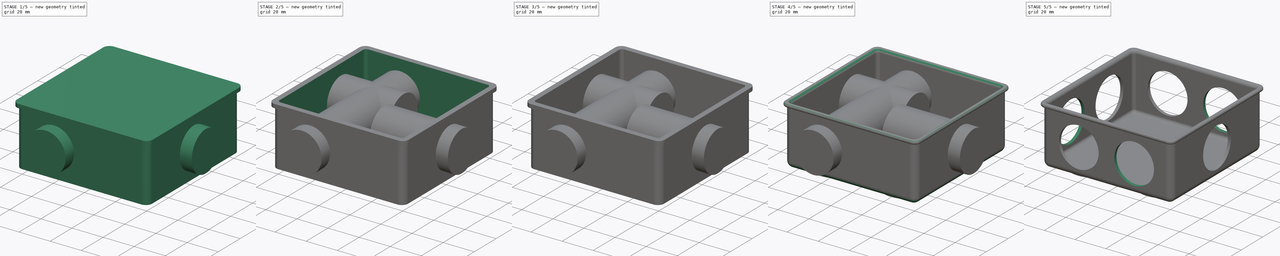
[diagram: build sequence overview — one tinted view per stage of 5, left to right]
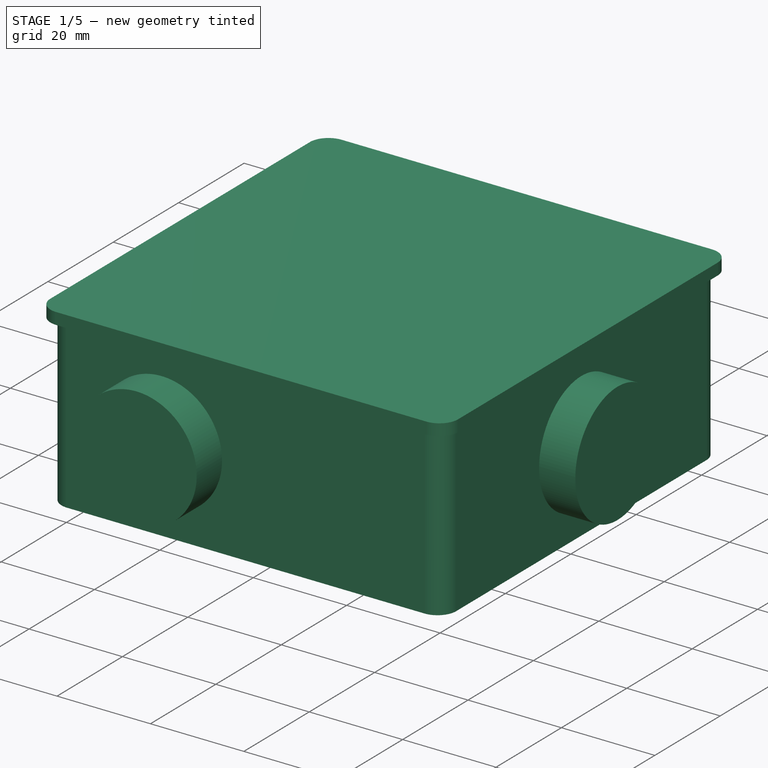
[diagram: stage 1 of 5 — iso view after this stage's code; geometry added in this stage tinted green]
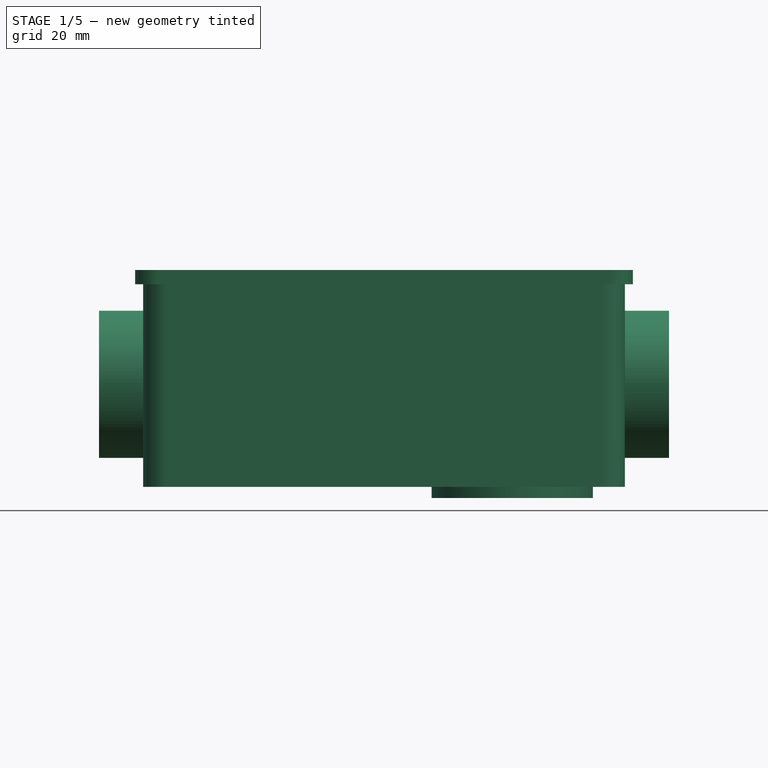
[diagram: stage 1 of 5 — front view after this stage's code; geometry added in this stage tinted green]
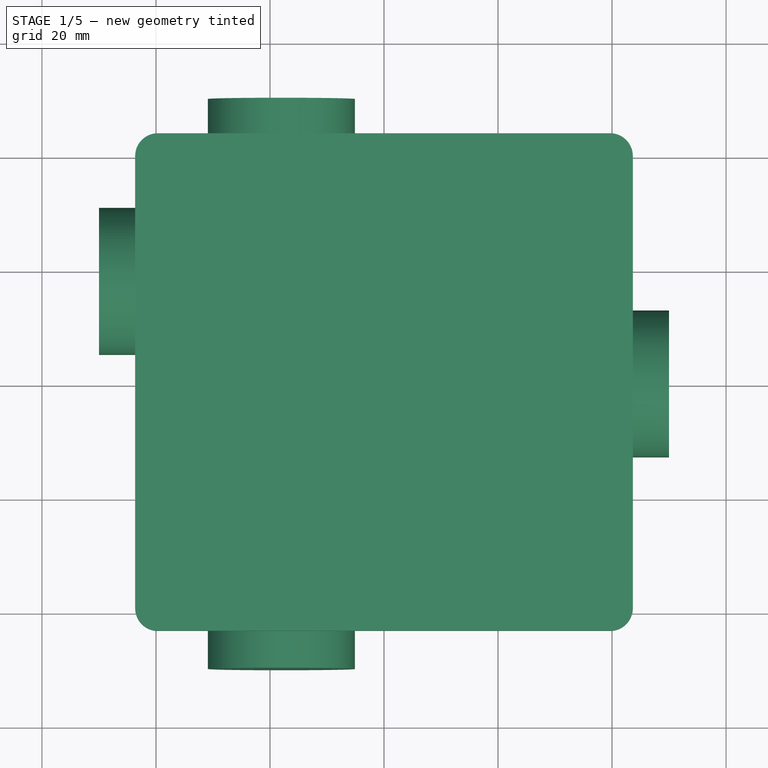
[diagram: stage 1 of 5 — top view after this stage's code; geometry added in this stage tinted green]
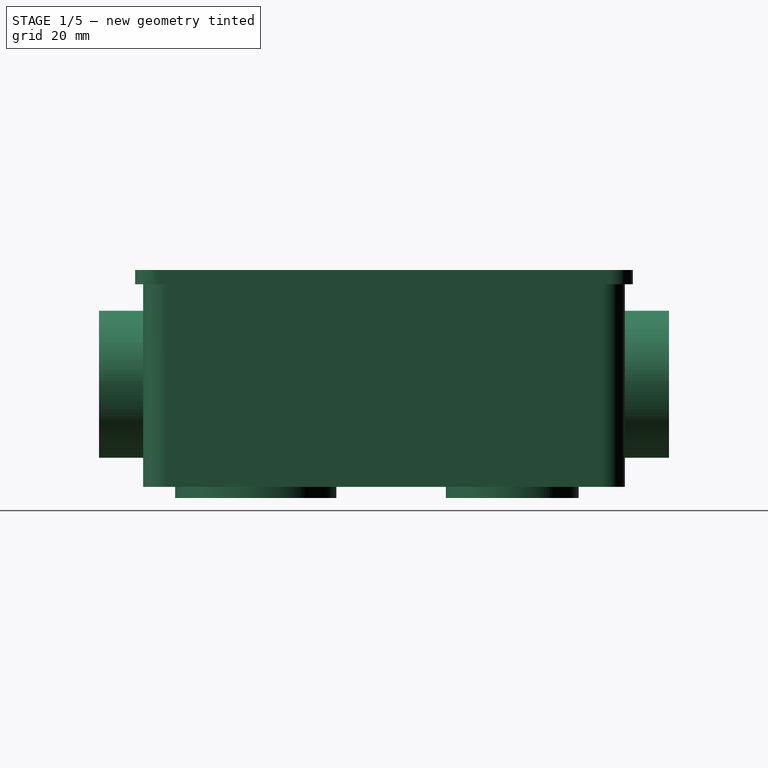
[diagram: stage 1 of 5 — right view after this stage's code; geometry added in this stage tinted green]
FCSTD DOCUMENT  (FreeCAD 0.15R4671 (Git))
Label: Cuerpo
License: All rights reserved
LicenseURL: http://en.wikipedia.org/wiki/All_rights_reserved
objects: Part::Cylinder×13, Part::Cut×9, Part::MultiFuse×5, Part::Fillet×4, Sketcher::SketchObject×3, PartDesign::Pad×2, PartDesign::Pocket×1, Part::MultiCommon×1
note: 41 computed .brp shape members not serialized (recipe doc carries the construction recipe); baked Part::Feature solids carry a one-line shape summary decoded from their .brp

FEATURE [Sketcher::SketchObject] Sketch
  sketch-geometry (8):
    g0: LineSegment StartX=-38.25 StartY=42.25 StartZ=0 EndX=38.25 EndY=42.25 EndZ=0
    g1: LineSegment StartX=42.25 StartY=38.25 StartZ=0 EndX=42.25 EndY=-38.25 EndZ=0
    g2: LineSegment StartX=38.25 StartY=-42.25 StartZ=0 EndX=-38.25 EndY=-42.25 EndZ=0
    g3: LineSegment StartX=-42.25 StartY=-38.25 StartZ=0 EndX=-42.25 EndY=38.25 EndZ=0
    g4: ArcOfCircle CenterX=38.25 CenterY=38.25 CenterZ=0 NormalX=0 NormalY=0 NormalZ=1 Radius=4 StartAngle=0 EndAngle=1.5708
    g5: ArcOfCircle CenterX=-38.25 CenterY=38.25 CenterZ=0 NormalX=0 NormalY=0 NormalZ=1 Radius=4 StartAngle=1.5708 EndAngle=3.14159
    g6: ArcOfCircle CenterX=-38.25 CenterY=-38.25 CenterZ=0 NormalX=0 NormalY=0 NormalZ=1 Radius=4 StartAngle=3.14159 EndAngle=4.71239
    g7: ArcOfCircle CenterX=38.25 CenterY=-38.25 CenterZ=0 NormalX=0 NormalY=0 NormalZ=1 Radius=4 StartAngle=4.71239 EndAngle=6.28319
  constraints (19):
    c: Horizontal(g0)
    c: Horizontal(g2)
    c: Vertical(g1)
    c: Vertical(g3)
    c: Tangent(g0,g4) = 1.5708
    c: Tangent(g1,g4) = 1.5708
    c: Tangent(g0,g5) = 1.5708
    c: Tangent(g3,g5) = 1.5708
    c: Tangent(g3,g6) = 1.5708
    c: Tangent(g2,g6) = 1.5708
    c: Tangent(g2,g7) = 1.5708
    c: Tangent(g1,g7) = 1.5708
    c: Equal(g5,g4)
    c: Equal(g4,g7)
    c: Equal(g7,g6)
    c: Radius(g5) = 4
    c: Equal(g0,g1)
    c: Symmetric(g5,g7,g-1)
    c: DistanceY(g0,g2) = -84.5
FEATURE [PartDesign::Pad] Pad
  Length = 35.55
  Length2 = 100
  Sketch = -> Sketch
  Type = 0
FEATURE [Sketcher::SketchObject] Sketch001
  Placement = pos=(0,0,35.55) rot=(0,0,1;0rad)
  Support = -> Pad [Face10]
  sketch-geometry (8):
    g0: LineSegment StartX=-39.65 StartY=43.65 StartZ=0 EndX=39.65 EndY=43.65 EndZ=0
    g1: LineSegment StartX=43.65 StartY=39.65 StartZ=0 EndX=43.65 EndY=-39.65 EndZ=0
    g2: LineSegment StartX=39.65 StartY=-43.65 StartZ=0 EndX=-39.65 EndY=-43.65 EndZ=0
    g3: LineSegment StartX=-43.65 StartY=-39.65 StartZ=0 EndX=-43.65 EndY=39.65 EndZ=0
    g4: ArcOfCircle CenterX=39.65 CenterY=39.65 CenterZ=0 NormalX=0 NormalY=0 NormalZ=1 Radius=4 StartAngle=0 EndAngle=1.5708
    g5: ArcOfCircle CenterX=39.65 CenterY=-39.65 CenterZ=0 NormalX=0 NormalY=0 NormalZ=1 Radius=4 StartAngle=4.71239 EndAngle=6.28319
    g6: ArcOfCircle CenterX=-39.65 CenterY=-39.65 CenterZ=0 NormalX=0 NormalY=0 NormalZ=1 Radius=4 StartAngle=3.14159 EndAngle=4.71239
    g7: ArcOfCircle CenterX=-39.65 CenterY=39.65 CenterZ=0 NormalX=0 NormalY=0 NormalZ=1 Radius=4 StartAngle=1.5708 EndAngle=3.14159
  constraints (19):
    c: Horizontal(g0)
    c: Horizontal(g2)
    c: Vertical(g1)
    c: Vertical(g3)
    c: Tangent(g0,g4) = 1.5708
    c: Tangent(g1,g4) = 1.5708
    c: Tangent(g1,g5) = 1.5708
    c: Tangent(g2,g5) = 1.5708
    c: Tangent(g2,g6) = 1.5708
    c: Tangent(g3,g6) = 1.5708
    c: Tangent(g3,g7) = 1.5708
    c: Tangent(g0,g7) = 1.5708
    c: Equal(g7,g4)
    c: Equal(g4,g5)
    c: Equal(g5,g6)
    c: Radius(g4) = 4
    c: Symmetric(g7,g5,g-1)
    c: Equal(g0,g1)
    c: DistanceY(g0,g2) = -87.3
FEATURE [PartDesign::Pad] Pad001
  Length = 2.5
  Length2 = 100
  Sketch = -> Sketch001
  Type = 0
FEATURE [Part::Cylinder] Cylinder001
  Angle = 360
  Height = 1.95
  Placement = pos=(22.5,-22.5,-1.95) rot=(0,0,1;0rad)
  Radius = 14.15
FEATURE [Part::Cylinder] Cylinder004
  Angle = 360
  Height = 1.95
  Placement = pos=(22.5,22.5,-1.95) rot=(0,0,1;0rad)
  Radius = 11.65
FEATURE [Part::Cylinder] Cylinder008
  Angle = 360
  Height = 100
  Placement = pos=(-18,50,18) rot=(1,0,0;1.5708rad)
  Radius = 12.9
FEATURE [Part::Cylinder] Cylinder010
  Angle = 360
  Height = 50
  Placement = pos=(-50,18,18) rot=(0,1,0;1.5708rad)
  Radius = 12.9
FEATURE [Part::Cylinder] Cylinder012
  Angle = 360
  Height = 50
  Placement = pos=(0,0,18) rot=(0,1,0;1.5708rad)
  Radius = 12.9
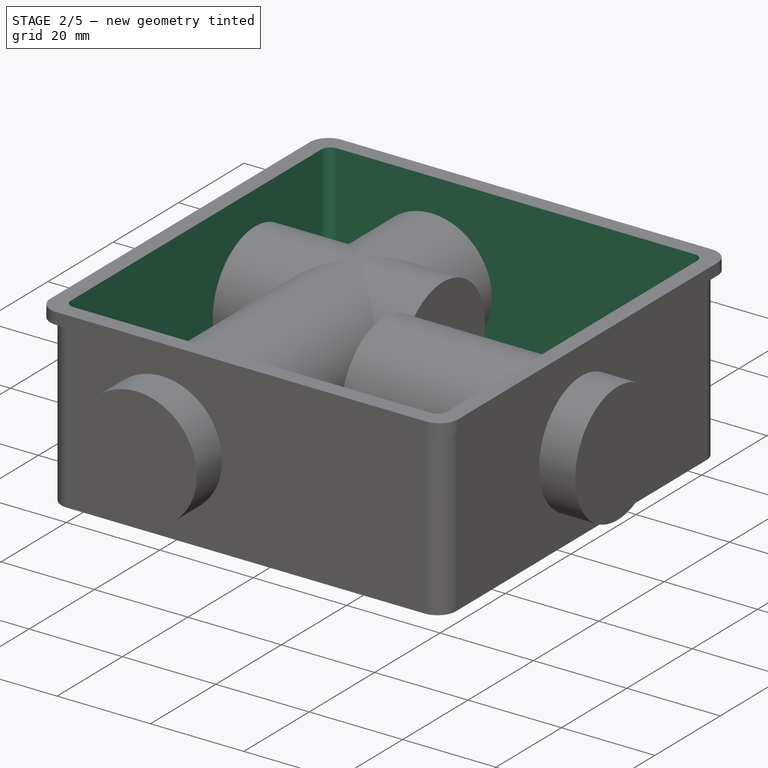
[diagram: stage 2 of 5 — iso view after this stage's code; geometry added in this stage tinted green]
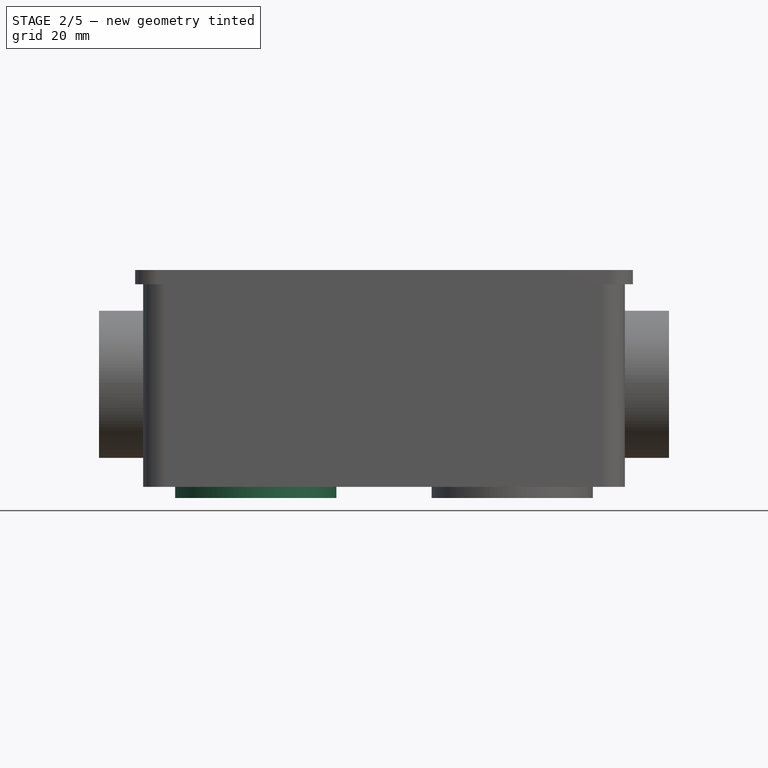
[diagram: stage 2 of 5 — front view after this stage's code; geometry added in this stage tinted green]
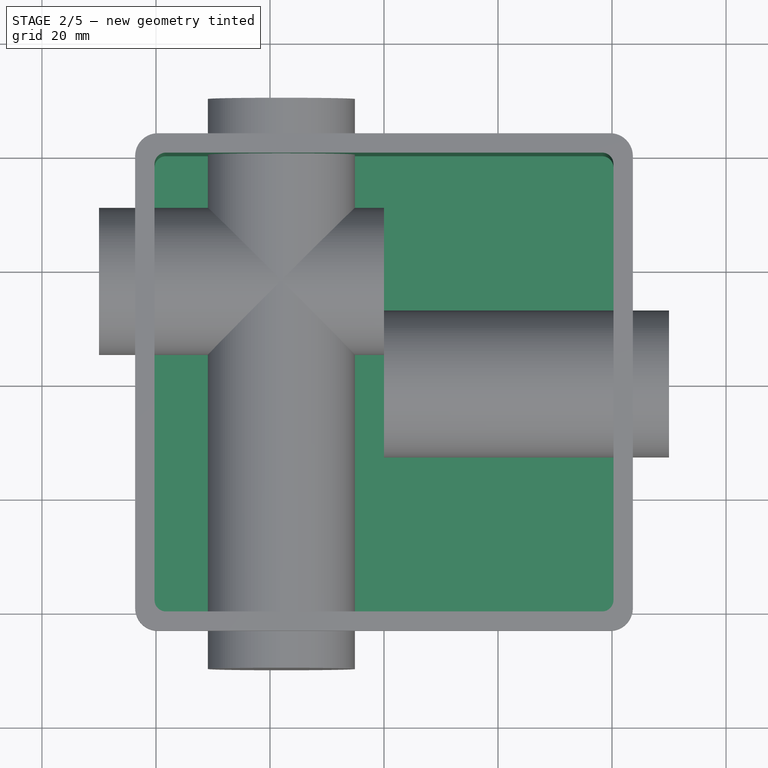
[diagram: stage 2 of 5 — top view after this stage's code; geometry added in this stage tinted green]
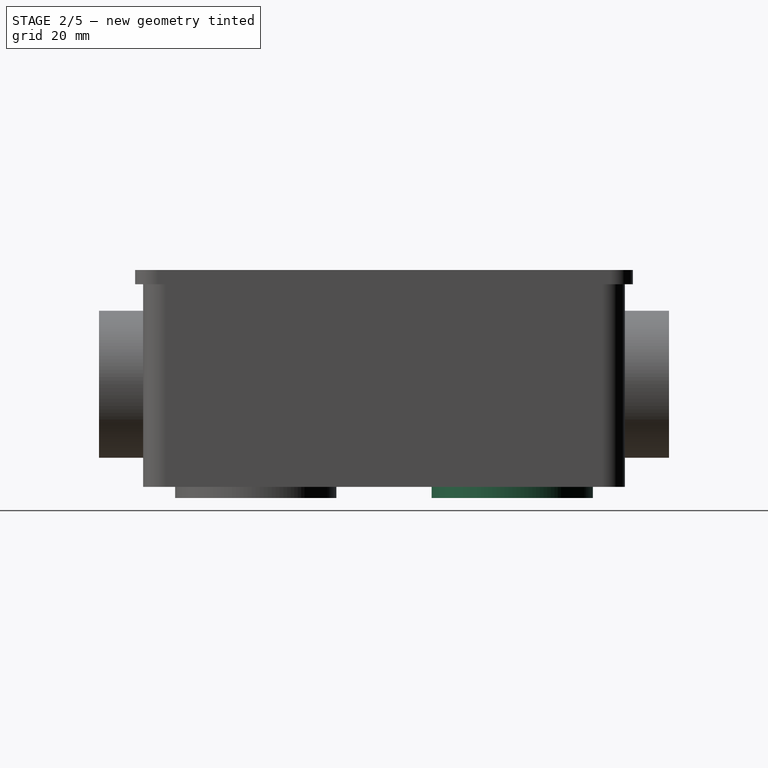
[diagram: stage 2 of 5 — right view after this stage's code; geometry added in this stage tinted green]
FEATURE [Part::Cylinder] Cylinder
  Angle = 360
  Height = 1.95
  Placement = pos=(22.5,22.5,-1.95) rot=(0,0,1;0rad)
  Radius = 14.15
FEATURE [Part::MultiFuse] Fusion
  Shapes = -> [Pad001,Pad]
FEATURE [Sketcher::SketchObject] Sketch002
  Placement = pos=(0,0,38.05) rot=(0,0,1;0rad)
  Support = -> Fusion [Face5]
  sketch-geometry (8):
    g0: LineSegment StartX=-38.25 StartY=40.25 StartZ=0 EndX=38.25 EndY=40.25 EndZ=0
    g1: LineSegment StartX=40.25 StartY=38.25 StartZ=0 EndX=40.25 EndY=-38.25 EndZ=0
    g2: LineSegment StartX=38.25 StartY=-40.25 StartZ=0 EndX=-38.25 EndY=-40.25 EndZ=0
    g3: LineSegment StartX=-40.25 StartY=-38.25 StartZ=0 EndX=-40.25 EndY=38.25 EndZ=0
    g4: ArcOfCircle CenterX=38.25 CenterY=38.25 CenterZ=0 NormalX=0 NormalY=0 NormalZ=1 Radius=2 StartAngle=0 EndAngle=1.5708
    g5: ArcOfCircle CenterX=38.25 CenterY=-38.25 CenterZ=0 NormalX=0 NormalY=0 NormalZ=1 Radius=2 StartAngle=4.71239 EndAngle=6.28319
    g6: ArcOfCircle CenterX=-38.25 CenterY=-38.25 CenterZ=0 NormalX=0 NormalY=0 NormalZ=1 Radius=2 StartAngle=3.14159 EndAngle=4.71239
    g7: ArcOfCircle CenterX=-38.25 CenterY=38.25 CenterZ=0 NormalX=0 NormalY=0 NormalZ=1 Radius=2 StartAngle=1.5708 EndAngle=3.14159
  constraints (19):
    c: Horizontal(g0)
    c: Horizontal(g2)
    c: Vertical(g1)
    c: Vertical(g3)
    c: Tangent(g0,g4) = 1.5708
    c: Tangent(g1,g4) = 1.5708
    c: Tangent(g1,g5) = 1.5708
    c: Tangent(g2,g5) = 1.5708
    c: Tangent(g2,g6) = 1.5708
    c: Tangent(g3,g6) = 1.5708
    c: Tangent(g3,g7) = 1.5708
    c: Tangent(g0,g7) = 1.5708
    c: Equal(g7,g4)
    c: Equal(g4,g5)
    c: Equal(g5,g6)
    c: Radius(g4) = 2
    c: Symmetric(g7,g5,g-1)
    c: Equal(g0,g1)
    c: DistanceY(g0,g2) = -80.5
FEATURE [PartDesign::Pocket] Pocket
  Length = 36.7
  Sketch = -> Sketch002
  Type = 0
FEATURE [Part::MultiCommon] Common
  Shapes = -> [Pocket,Fusion]
FEATURE [Part::MultiFuse] Fusion001
  Shapes = -> [Common,Cylinder]
FEATURE [Part::Cylinder] Cylinder002
  Angle = 360
  Height = 1.95
  Placement = pos=(-22.5,22.5,-1.95) rot=(0,0,1;0rad)
  Radius = 14.15
FEATURE [Part::MultiFuse] Fusion002
  Shapes = -> [Fusion001,Cylinder001]
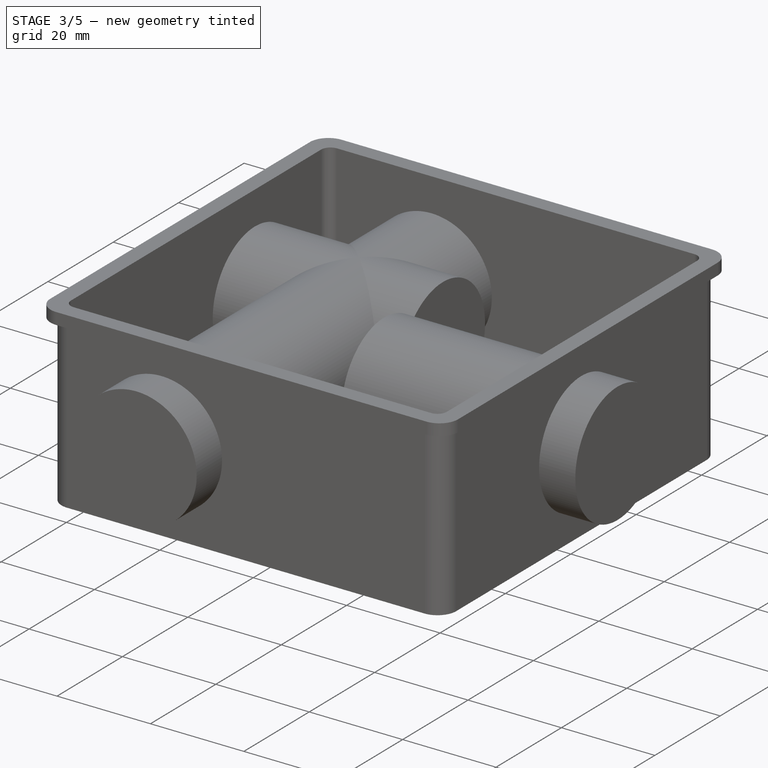
[diagram: stage 3 of 5 — iso view after this stage's code; geometry added in this stage tinted green]
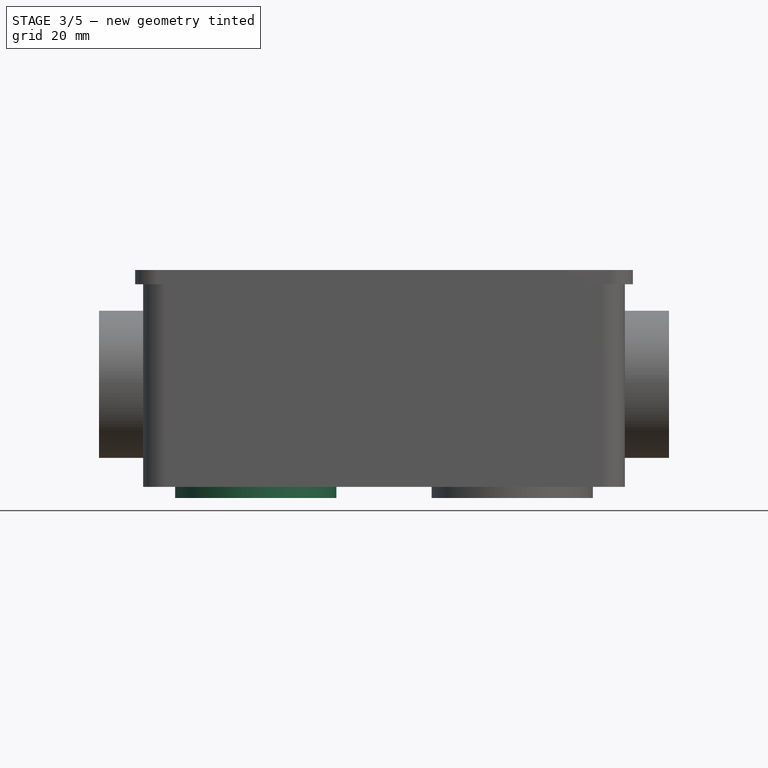
[diagram: stage 3 of 5 — front view after this stage's code; geometry added in this stage tinted green]
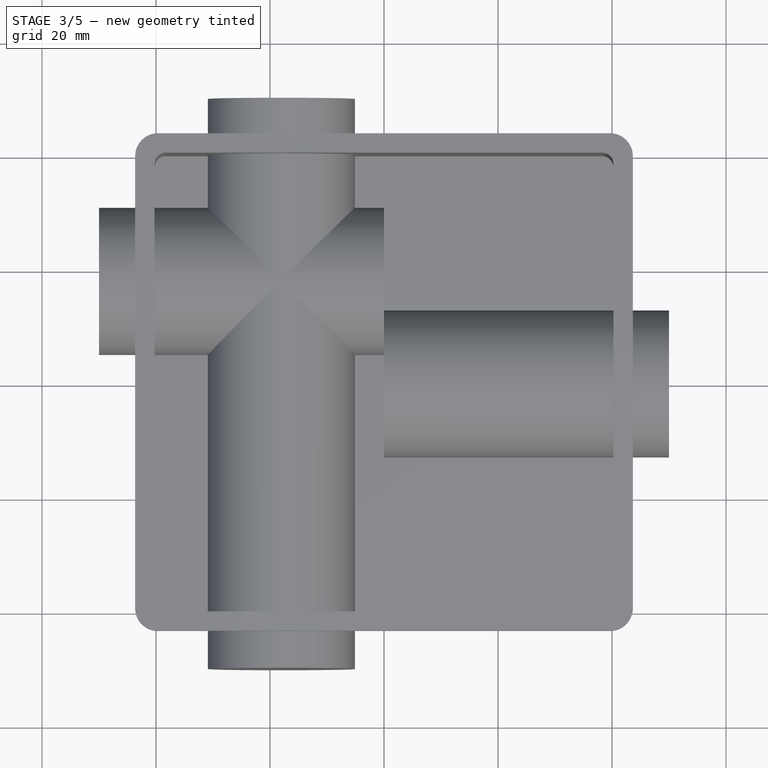
[diagram: stage 3 of 5 — top view after this stage's code; geometry added in this stage tinted green]
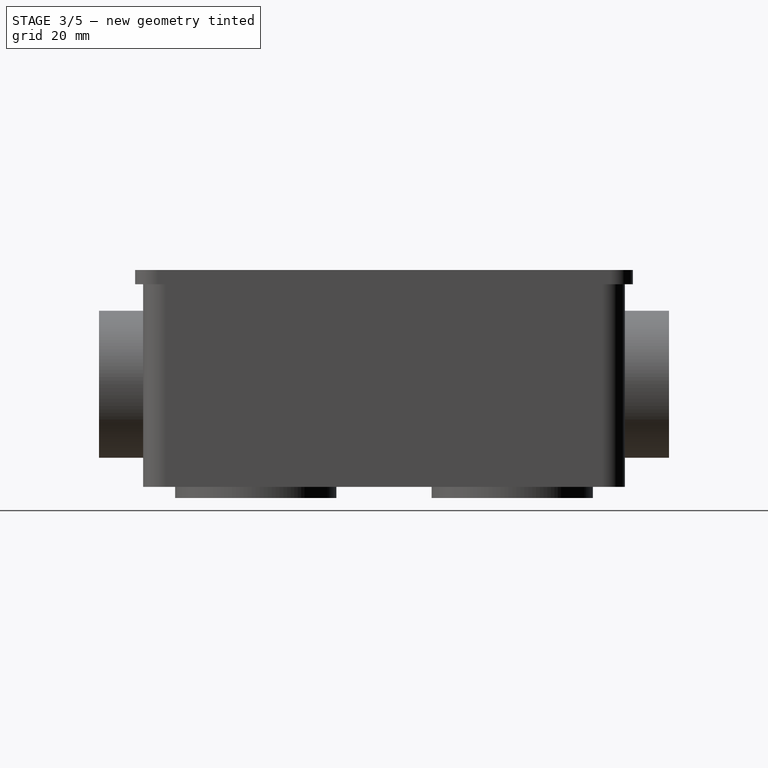
[diagram: stage 3 of 5 — right view after this stage's code; geometry added in this stage tinted green]
FEATURE [Part::Cylinder] Cylinder003
  Angle = 360
  Height = 1.95
  Placement = pos=(-22.5,-22.5,-1.95) rot=(0,0,1;0rad)
  Radius = 14.15
FEATURE [Part::MultiFuse] Fusion003
  Shapes = -> [Fusion002,Cylinder002]
FEATURE [Part::MultiFuse] Fusion004
  Shapes = -> [Fusion003,Cylinder003]
FEATURE [Part::Cylinder] Cylinder005
  Angle = 360
  Height = 1.95
  Placement = pos=(22.5,-22.5,-1.95) rot=(0,0,1;0rad)
  Radius = 11.65
FEATURE [Part::Cylinder] Cylinder006
  Angle = 360
  Height = 1.95
  Placement = pos=(-22.5,22.5,-1.95) rot=(0,0,1;0rad)
  Radius = 11.65
FEATURE [Part::Cut] Cut
  Base = -> Fusion004
  Tool = -> Cylinder004
FEATURE [Part::Cut] Cut001
  Base = -> Cut
  Tool = -> Cylinder005
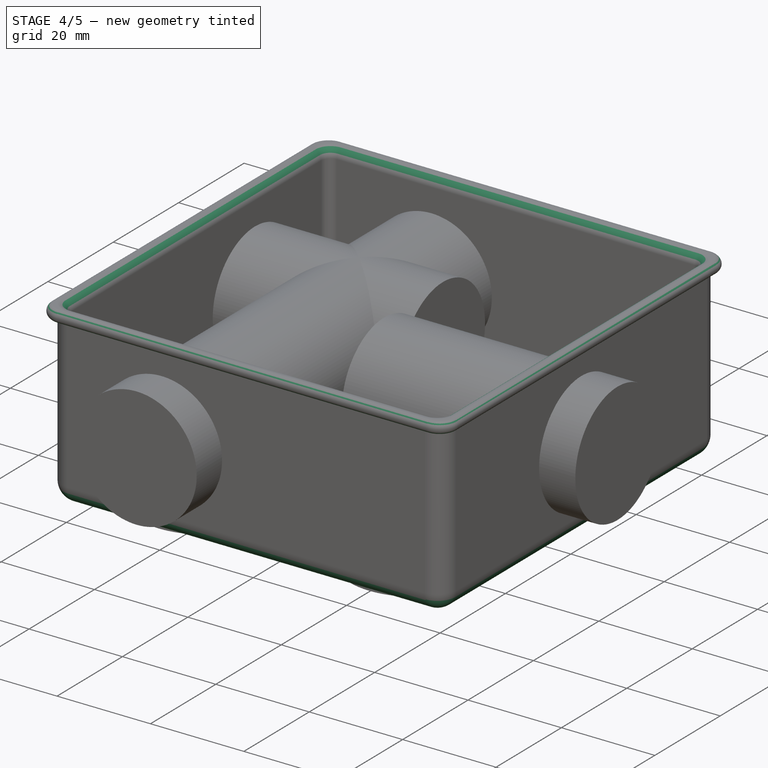
[diagram: stage 4 of 5 — iso view after this stage's code; geometry added in this stage tinted green]
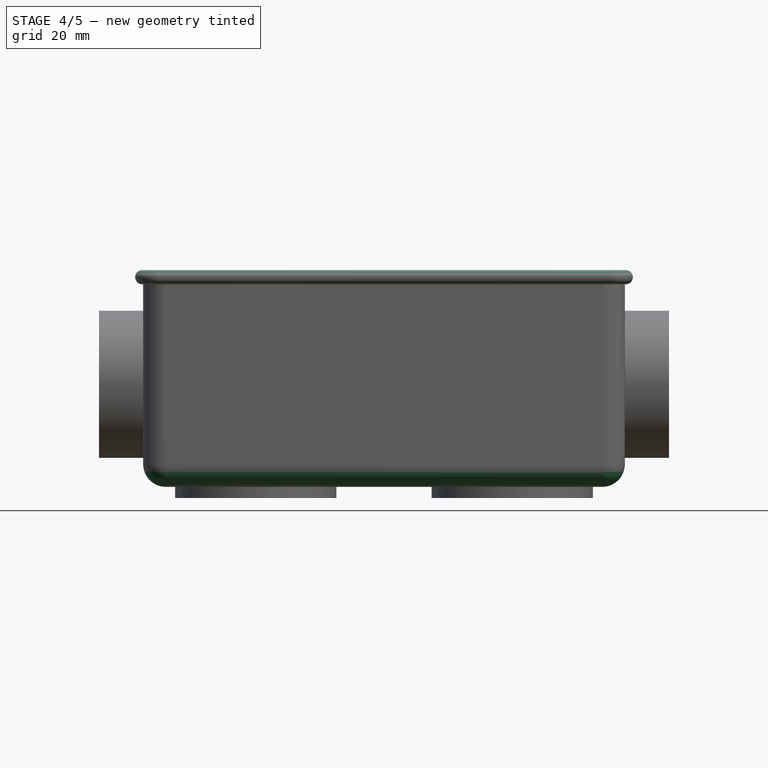
[diagram: stage 4 of 5 — front view after this stage's code; geometry added in this stage tinted green]
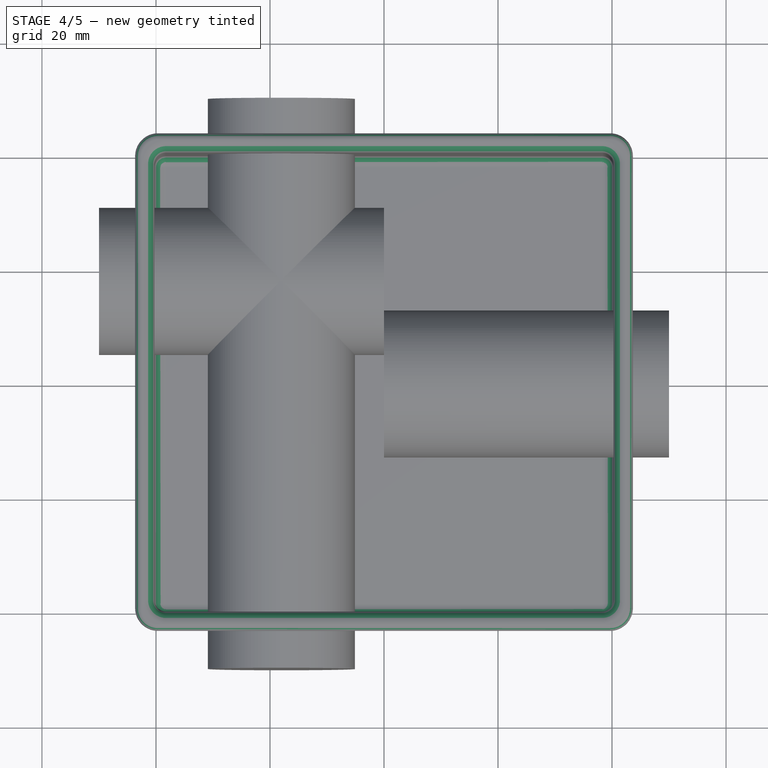
[diagram: stage 4 of 5 — top view after this stage's code; geometry added in this stage tinted green]
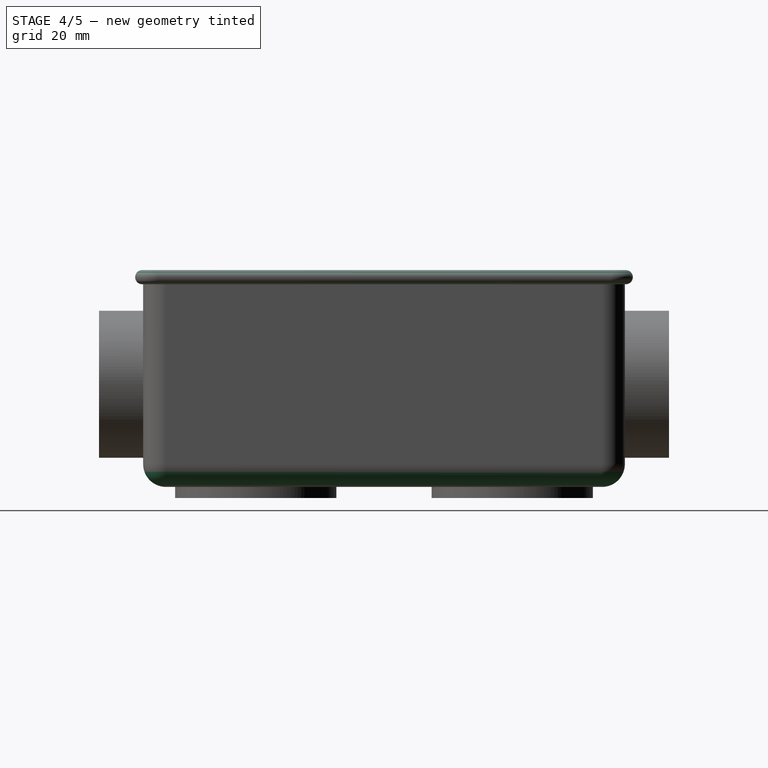
[diagram: stage 4 of 5 — right view after this stage's code; geometry added in this stage tinted green]
FEATURE [Part::Cylinder] Cylinder007
  Angle = 360
  Height = 1.95
  Placement = pos=(-22.5,-22.5,-1.95) rot=(0,0,1;0rad)
  Radius = 11.65
FEATURE [Part::Cut] Cut002
  Base = -> Cut001
  Tool = -> Cylinder006
FEATURE [Part::Cut] Cut003
  Base = -> Cut002
  Tool = -> Cylinder007
FEATURE [Part::Fillet] Fillet
  Base = -> Cut003
  Edges = 8 edges r=2: [Edge82,Edge84,Edge87,Edge89,Edge90,Edge92,Edge95,Edge96]
FEATURE [Part::Fillet] Fillet001
  Base = -> Fillet
  Edges = 8 edges r=4: [Edge74,Edge76,Edge79,Edge81,Edge82,Edge84,Edge87,Edge88]
FEATURE [Part::Fillet] Fillet002
  Base = -> Fillet001
  Edges = 16 edges r=1.24: [Edge11,Edge12,Edge13,Edge14,Edge15,Edge16,Edge17,Edge18,Edge34,Edge36,Edge39,Edge41,Edge42,Edge44,Edge47,Edge48]
FEATURE [Part::Fillet] Fillet003
  Base = -> Fillet002
  Edges = 8 edges r=2.15: [Edge101,Edge102,Edge103,Edge104,Edge105,Edge106,Edge107,Edge108]
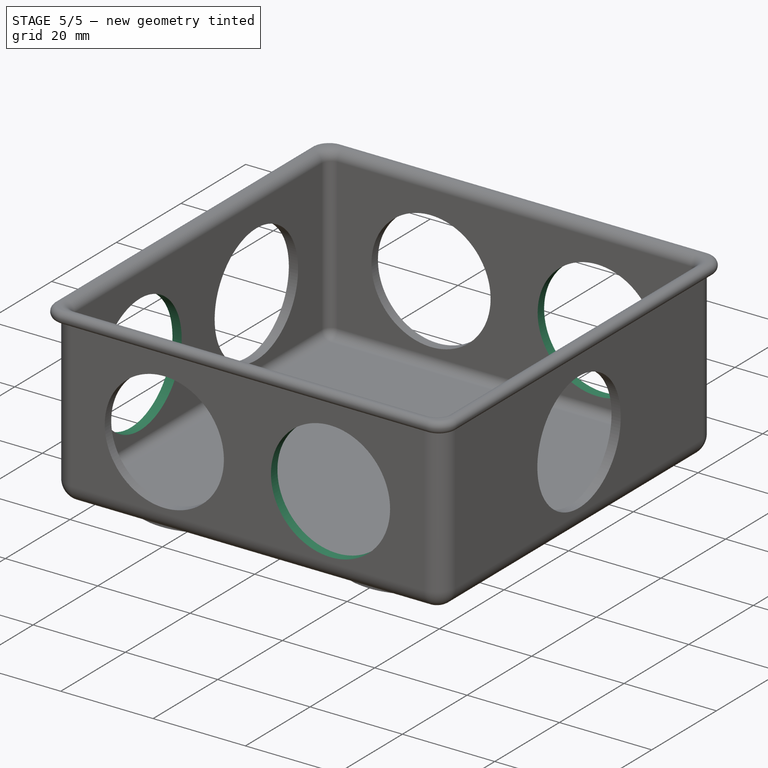
[diagram: stage 5 of 5 — iso view after this stage's code; geometry added in this stage tinted green]
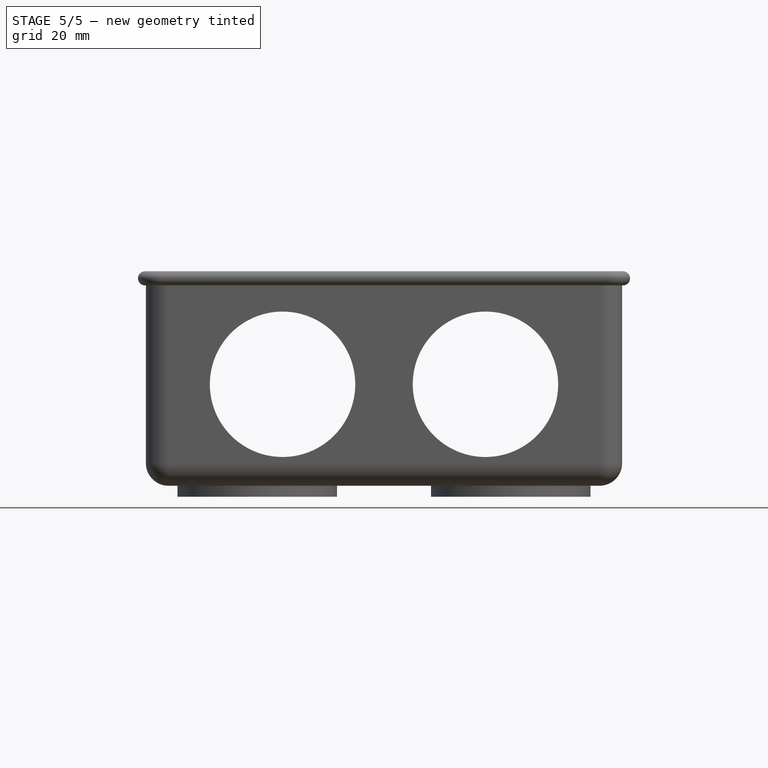
[diagram: stage 5 of 5 — front view after this stage's code; geometry added in this stage tinted green]
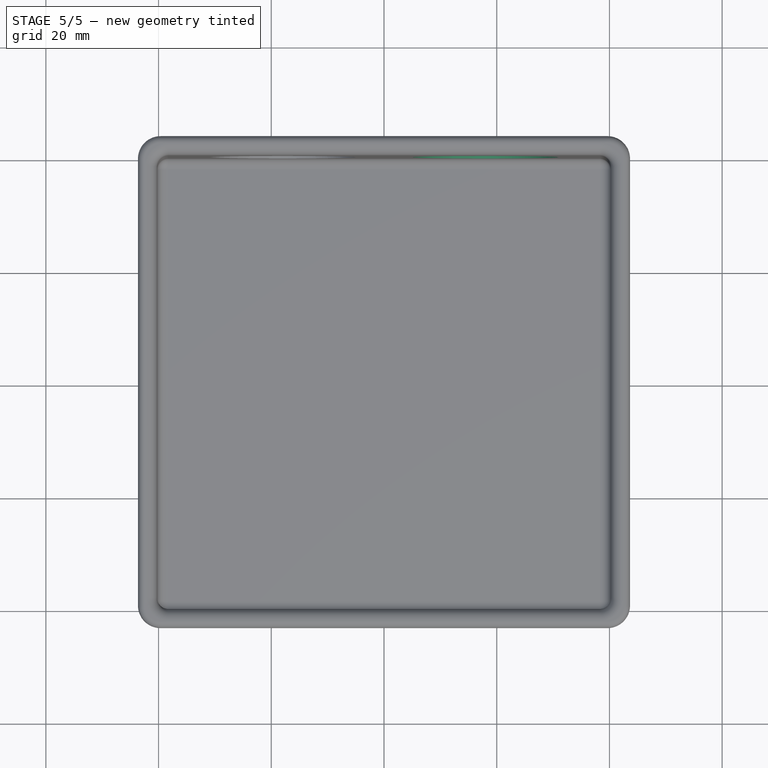
[diagram: stage 5 of 5 — top view after this stage's code; geometry added in this stage tinted green]
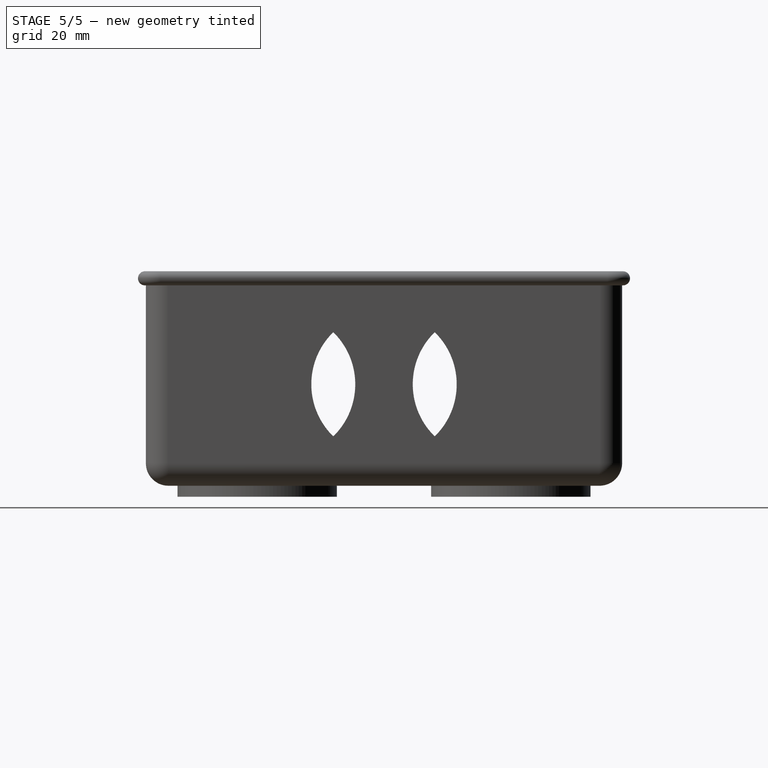
[diagram: stage 5 of 5 — right view after this stage's code; geometry added in this stage tinted green]
FEATURE [Part::Cylinder] Cylinder009
  Angle = 360
  Height = 100
  Placement = pos=(18,50,18) rot=(1,0,0;1.5708rad)
  Radius = 12.9
FEATURE [Part::Cut] Cut004
  Base = -> Fillet003
  Tool = -> Cylinder008
FEATURE [Part::Cut] Cut005
  Base = -> Cut004
  Tool = -> Cylinder009
FEATURE [Part::Cylinder] Cylinder011
  Angle = 360
  Height = 50
  Placement = pos=(-50,-18,18) rot=(0,1,0;1.5708rad)
  Radius = 12.9
FEATURE [Part::Cut] Cut006
  Base = -> Cut005
  Tool = -> Cylinder010
FEATURE [Part::Cut] Cut007
  Base = -> Cut006
  Tool = -> Cylinder011
FEATURE [Part::Cut] Cut008
  Base = -> Cut007
  Tool = -> Cylinder012
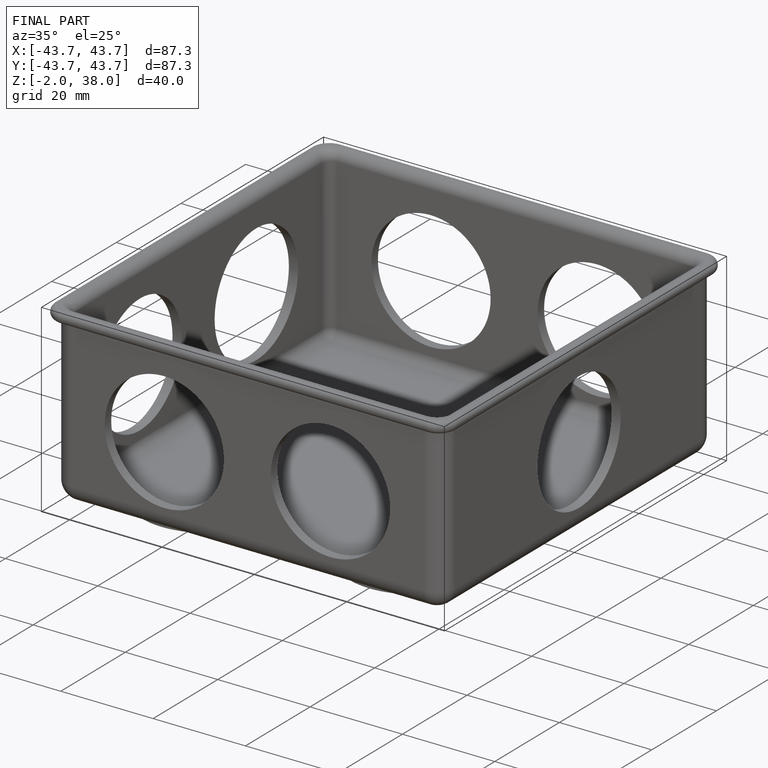
[diagram: finished part — iso view with bounding-box wireframe]
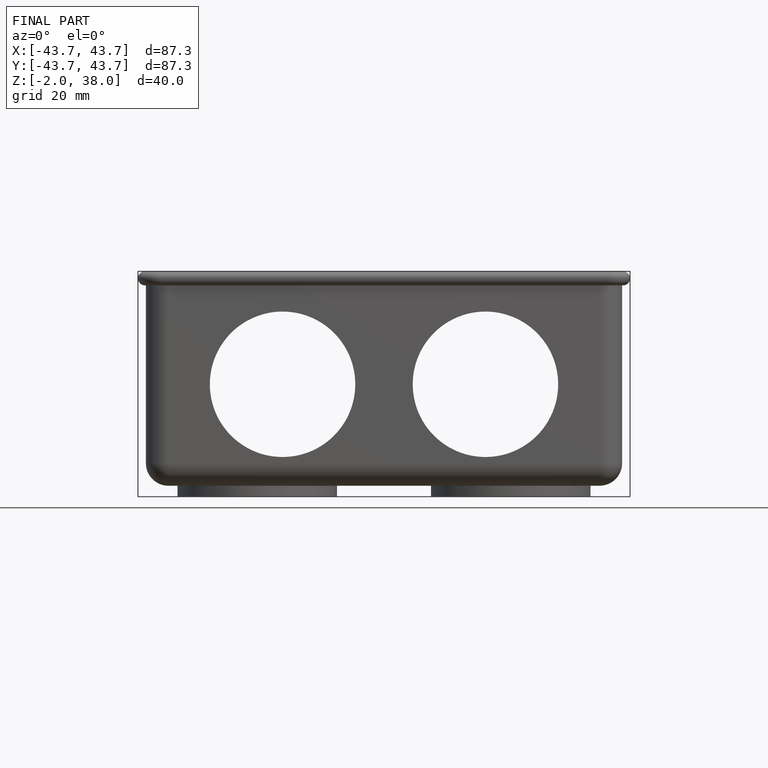
[diagram: finished part — front view with bounding-box wireframe]
